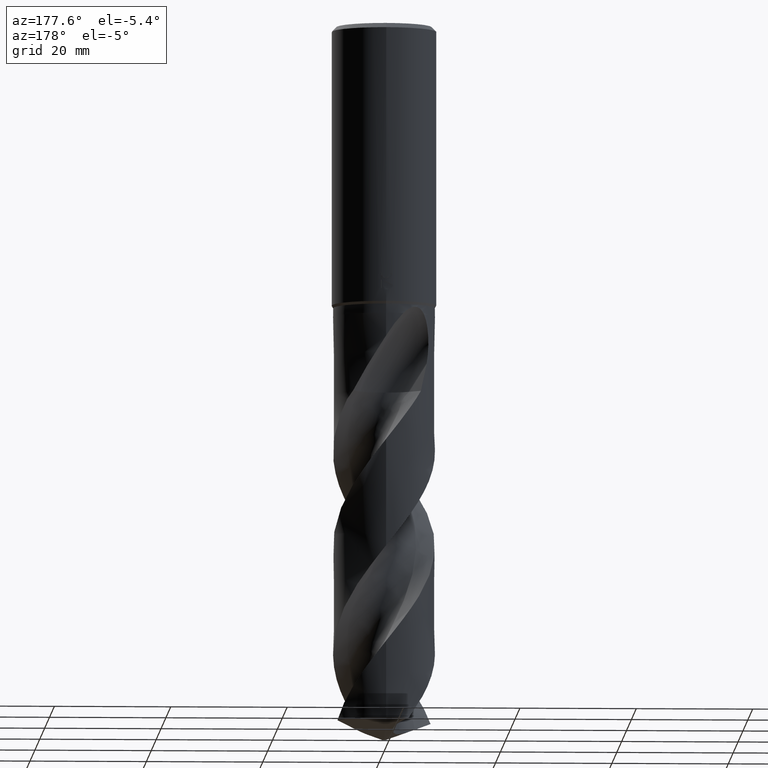
[diagram: clean part render]
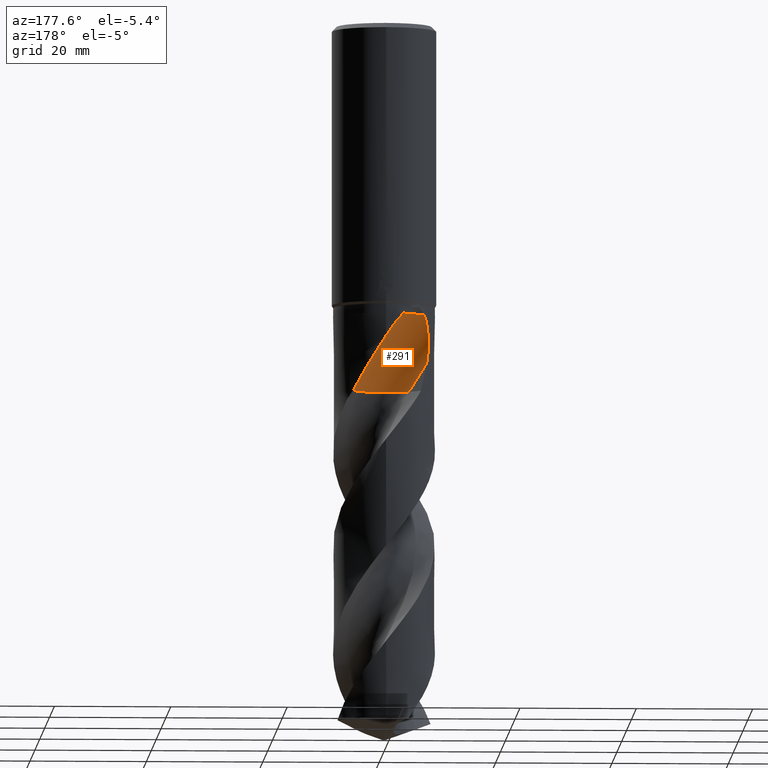
[diagram: same view with one face highlighted and labeled with its STEP entity id]
A machine part, auxiliary view. The second image highlights one B-rep face of the part: STEP entity #291.
In plain terms, the highlighted face is a SurfaceOfRevolution surface.
Its self-contained STEP definition (entity closure, byte-faithful):
#271=VERTEX_POINT('',#754);
#291=ADVANCED_FACE('',(#778),#779,.F.);
#311=EDGE_CURVE('',#445,#411,#802,.T.);
#315=EDGE_CURVE('',#271,#445,#806,.T.);
#411=VERTEX_POINT('',#913);
#433=EDGE_CURVE('',#597,#511,#936,.T.);
#445=VERTEX_POINT('',#948);
#471=VERTEX_POINT('',#978);
#511=VERTEX_POINT('',#1022);
#529=VERTEX_POINT('',#1041);
#575=EDGE_CURVE('',#529,#597,#1090,.T.);
#597=VERTEX_POINT('',#1113);
#615=EDGE_CURVE('',#511,#411,#1134,.T.);
#625=EDGE_CURVE('',#471,#271,#1145,.T.);
#715=EDGE_CURVE('',#529,#471,#1241,.T.);
#754=CARTESIAN_POINT('',(-2.97701163631891,8.22788865549491,-50.0));
#778=FACE_OUTER_BOUND('',#1316,.T.);
#779=SURFACE_OF_REVOLUTION('',#1317,#1318);
#802=B_SPLINE_CURVE_WITH_KNOTS('',3,(#1409,#1410,#1411,#1412,#1413,#1414,#1415,#1416,#1417,#1418),.UNSPECIFIED.,.F.,.F.,(4,2,2,2,4),(0.0,1.64422334483908,3.9420113152009,5.14731425818044,6.40533069731672),.UNSPECIFIED.);
#806=B_SPLINE_CURVE_WITH_KNOTS('',3,(#1423,#1424,#1425,#1426,#1427,#1428,#1429,#1430,#1431,#1432),.UNSPECIFIED.,.F.,.F.,(4,2,2,2,4),(0.0,1.89437961589908,3.62938960337551,5.38410260870692,7.51281131798792),.UNSPECIFIED.);
#913=CARTESIAN_POINT('',(-7.11928478301169,5.08691909114738,-58.4438076343714));
#936=CIRCLE('',#2102,5.83333333);
#948=CARTESIAN_POINT('',(-6.63187349019705,5.70780203055621,-50.0));
#978=CARTESIAN_POINT('',(-3.78455049373546E-013,8.74990563483617,-53.9339755541501));
#1022=CARTESIAN_POINT('',(-4.12478955449379,4.33354377550621,-63.235));
#1041=CARTESIAN_POINT('',(5.57559287318262,6.74342982981346,-63.235));
#1090=CIRCLE('',#3638,5.83333333);
#1113=CARTESIAN_POINT('',(-0.629260716022749,2.65901798881034,-63.235));
#1134=CIRCLE('',#3744,38.0210241106378);
#1145=B_SPLINE_CURVE_WITH_KNOTS('',3,(#3760,#3761,#3762,#3763,#3764,#3765,#3766,#3767,#3768,#3769,#3770,#3771,#3772,#3773),.UNSPECIFIED.,.F.,.F.,(4,2,2,2,2,2,4),(0.0,4.14988247690823,6.52862533745511,8.64910496144641,11.0925197142912,14.0430155067481,15.7093675855229),.UNSPECIFIED.);
#1241=B_SPLINE_CURVE_WITH_KNOTS('',3,(#5393,#5394,#5395,#5396,#5397,#5398,#5399,#5400,#5401,#5402,#5403,#5404,#5405,#5406),.UNSPECIFIED.,.F.,.F.,(4,2,2,2,2,2,4),(0.0,4.14988247690823,6.52862533745511,8.64910496144641,11.0925197142912,14.0430155067481,15.7093675855229),.UNSPECIFIED.);
#1316=EDGE_LOOP('',(#5484,#5485,#5486,#5487,#5488,#5489,#5490));
#1317=(B_SPLINE_CURVE(3,(#5492,#5493,#5494,#5495,#5496,#5497,#5498,#5499,#5500),.UNSPECIFIED.,.F.,.F.)B_SPLINE_CURVE_WITH_KNOTS((4,1,3,1,4),(-2.85639446721243,-2.55363934316118,-2.25088421910994,-1.9481290950587,-1.64537397100745),.UNSPECIFIED.)RATIONAL_B_SPLINE_CURVE((1.09166066513928,1.03055355504643,0.969446444953572,1.03055355504643,1.09166066513928,1.03055355504643,0.969446444953572,1.03055355504643,1.09166066513928))BOUNDED_CURVE()REPRESENTATION_ITEM('')GEOMETRIC_REPRESENTATION_ITEM()CURVE());
#1318=AXIS1_PLACEMENT('',#5507,#5508);
#1409=CARTESIAN_POINT('',(-6.63187349019706,5.70780203055621,-50.0));
#1410=CARTESIAN_POINT('',(-6.84808104532585,5.45659225227045,-50.4365014790994));
#1411=CARTESIAN_POINT('',(-7.01835431055026,5.22992634720042,-50.9789288608092));
#1412=CARTESIAN_POINT('',(-7.32355230996356,4.7980632089873,-52.4715702501462));
#1413=CARTESIAN_POINT('',(-7.42450096489546,4.63008954785741,-53.5264574254388));
#1414=CARTESIAN_POINT('',(-7.43276960911426,4.61680066875962,-55.3246708938513));
#1415=CARTESIAN_POINT('',(-7.40884157712586,4.65600228667079,-55.9434451402187));
#1416=CARTESIAN_POINT('',(-7.30757089408643,4.81346859328869,-57.1955215219754));
#1417=CARTESIAN_POINT('',(-7.22816436901189,4.9345375558203,-57.8245279429822));
#1418=CARTESIAN_POINT('',(-7.11928478301168,5.08691909114738,-58.4438076343714));
#1423=CARTESIAN_POINT('',(-2.7419978708764,8.7999,-50.0));
#1424=CARTESIAN_POINT('',(-2.94619092063928,8.20236609440777,-50.0));
#1425=CARTESIAN_POINT('',(-3.25547046504474,7.65088679469313,-49.9999999999774));
#1426=CARTESIAN_POINT('',(-4.05543135956222,6.74677654869634,-49.9999999999774));
#1427=CARTESIAN_POINT('',(-4.51485600838567,6.39739188955216,-50.0000000000013));
#1428=CARTESIAN_POINT('',(-5.55869641553648,5.89073384664052,-50.0000000000013));
#1429=CARTESIAN_POINT('',(-6.12583509665993,5.74459975825155,-50.0000000000002));
#1430=CARTESIAN_POINT('',(-7.41506229825283,5.64931918146912,-50.0000000000002));
#1431=CARTESIAN_POINT('',(-8.12436621678291,5.74970005201506,-50.0));
#1432=CARTESIAN_POINT('',(-8.7999,5.97056682431863,-50.0));
#2102=AXIS2_PLACEMENT_3D('',#5716,#5717,#5718);
#3638=AXIS2_PLACEMENT_3D('',#5854,#5855,#5856);
#3744=AXIS2_PLACEMENT_3D('',#5895,#5896,#5897);
#3760=CARTESIAN_POINT('',(5.57559287318263,6.74342982981346,-63.235));
#3761=CARTESIAN_POINT('',(5.01687867603331,7.20538290253726,-62.0568911193172));
#3762=CARTESIAN_POINT('',(4.3765175165887,7.6181161584269,-60.9553464271969));
#3763=CARTESIAN_POINT('',(3.24334606004291,8.13930051956936,-59.093538300541));
#3764=CARTESIAN_POINT('',(2.82203548269352,8.29431241382371,-58.4183832316648));
#3765=CARTESIAN_POINT('',(2.01139509427989,8.52484535974261,-57.1198497772741));
#3766=CARTESIAN_POINT('',(1.6263971279689,8.60624770816986,-56.5036412921548));
#3767=CARTESIAN_POINT('',(0.796429847563913,8.72514043273791,-55.1800668069518));
#3768=CARTESIAN_POINT('',(0.34529583133838,8.75491499320943,-54.4634048537099));
#3769=CARTESIAN_POINT('',(-0.658757541461902,8.74234259539162,-52.9225244696193));
#3770=CARTESIAN_POINT('',(-1.25236607891503,8.68247035078512,-52.0457746879718));
#3771=CARTESIAN_POINT('',(-2.21067037711961,8.47343095292311,-50.8238127998096));
#3772=CARTESIAN_POINT('',(-2.58616266633887,8.36930606984976,-50.3835962283072));
#3773=CARTESIAN_POINT('',(-2.97701163631891,8.2278886554949,-50.0));
#5393=CARTESIAN_POINT('',(5.57559287318263,6.74342982981346,-63.235));
#5394=CARTESIAN_POINT('',(5.01687867603331,7.20538290253726,-62.0568911193172));
#5395=CARTESIAN_POINT('',(4.3765175165887,7.6181161584269,-60.9553464271969));
#5396=CARTESIAN_POINT('',(3.24334606004291,8.13930051956936,-59.093538300541));
#5397=CARTESIAN_POINT('',(2.82203548269352,8.29431241382371,-58.4183832316648));
#5398=CARTESIAN_POINT('',(2.01139509427989,8.52484535974261,-57.1198497772741));
#5399=CARTESIAN_POINT('',(1.6263971279689,8.60624770816986,-56.5036412921548));
#5400=CARTESIAN_POINT('',(0.796429847563913,8.72514043273791,-55.1800668069518));
#5401=CARTESIAN_POINT('',(0.34529583133838,8.75491499320943,-54.4634048537099));
#5402=CARTESIAN_POINT('',(-0.658757541461902,8.74234259539162,-52.9225244696193));
#5403=CARTESIAN_POINT('',(-1.25236607891503,8.68247035078512,-52.0457746879718));
#5404=CARTESIAN_POINT('',(-2.21067037711961,8.47343095292311,-50.8238127998096));
#5405=CARTESIAN_POINT('',(-2.58616266633887,8.36930606984976,-50.3835962283072));
#5406=CARTESIAN_POINT('',(-2.97701163631891,8.2278886554949,-50.0));
#5484=ORIENTED_EDGE('',*,*,#311,.F.);
#5485=ORIENTED_EDGE('',*,*,#315,.F.);
#5486=ORIENTED_EDGE('',*,*,#625,.F.);
#5487=ORIENTED_EDGE('',*,*,#715,.F.);
#5488=ORIENTED_EDGE('',*,*,#575,.T.);
#5489=ORIENTED_EDGE('',*,*,#433,.T.);
#5490=ORIENTED_EDGE('',*,*,#615,.T.);
#5492=CARTESIAN_POINT('',(-4.12478955449379,4.33354377550621,-63.235));
#5493=CARTESIAN_POINT('',(-3.31694290101058,3.5256876614287,-63.235));
#5494=CARTESIAN_POINT('',(-1.2163611847413,2.37775595606222,-63.235));
#5495=CARTESIAN_POINT('',(1.1641713756664,2.62926236900058,-63.235));
#5496=CARTESIAN_POINT('',(2.22062765600387,3.06417367528262,-63.235));
#5497=CARTESIAN_POINT('',(3.27708393634134,3.49908498156466,-63.235));
#5498=CARTESIAN_POINT('',(5.14474180026248,4.99643091695966,-63.235));
#5499=CARTESIAN_POINT('',(5.8283439176027,7.29052744763972,-63.235));
#5500=CARTESIAN_POINT('',(5.8333025386348,8.43299107011262,-63.235));
#5507=CARTESIAN_POINT('',(-2.96614080323149,42.29166665,-65.0888380020197));
#5508=DIRECTION('',(0.847998304005088,-0.0,0.52999894000318));
#5716=CARTESIAN_POINT('',(2.41523139617506E-005,8.45830917768604,-63.235));
#5717=DIRECTION('',(0.0,0.0,-1.0));
#5718=DIRECTION('',(0.707102640777744,0.707110921571107,0.0));
#5854=CARTESIAN_POINT('',(2.41523139617506E-005,8.45830917768604,-63.235));
#5855=DIRECTION('',(0.0,0.0,-1.0));
#5856=DIRECTION('',(0.707102640777744,0.707110921571107,0.0));
#5895=CARTESIAN_POINT('',(-2.96614080323149,42.29166665,-65.0888380020197));
#5896=DIRECTION('',(-0.847998304005088,0.0,-0.52999894000318));
#5897=DIRECTION('',(-0.0535598123469755,-0.994880693120954,0.0856956997551607));